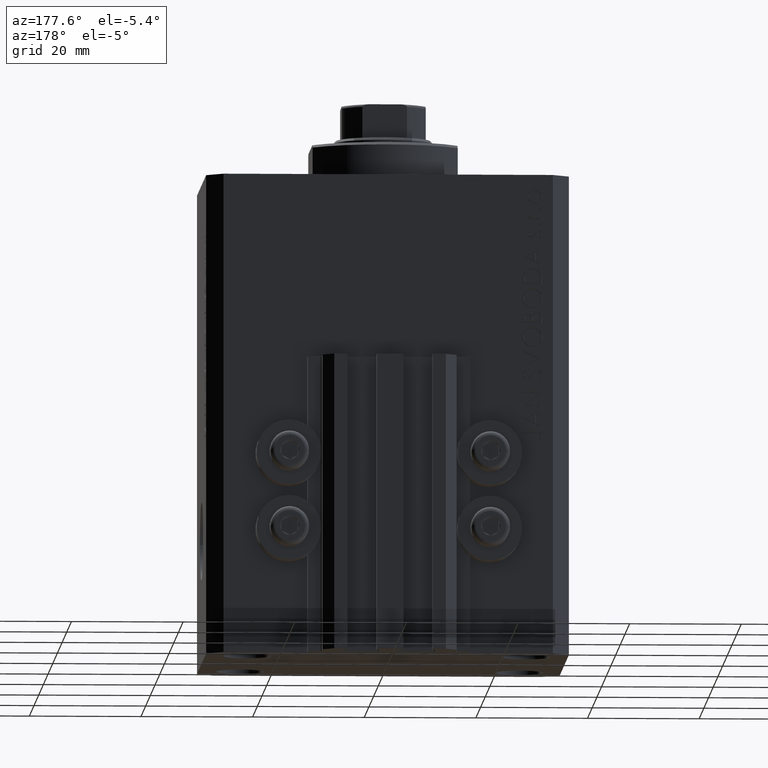
[diagram: clean part render]
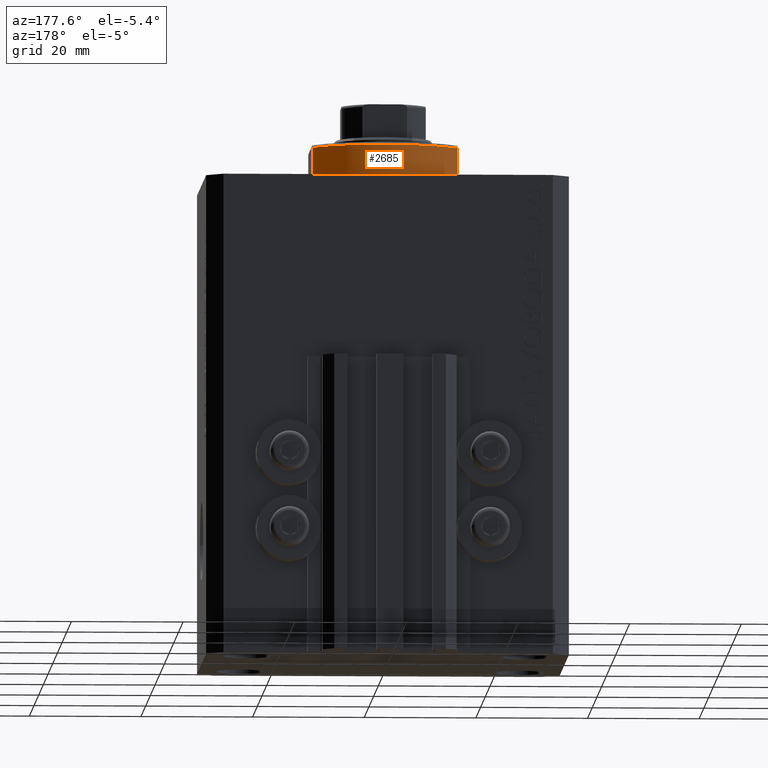
[diagram: same view with one face highlighted and labeled with its STEP entity id]
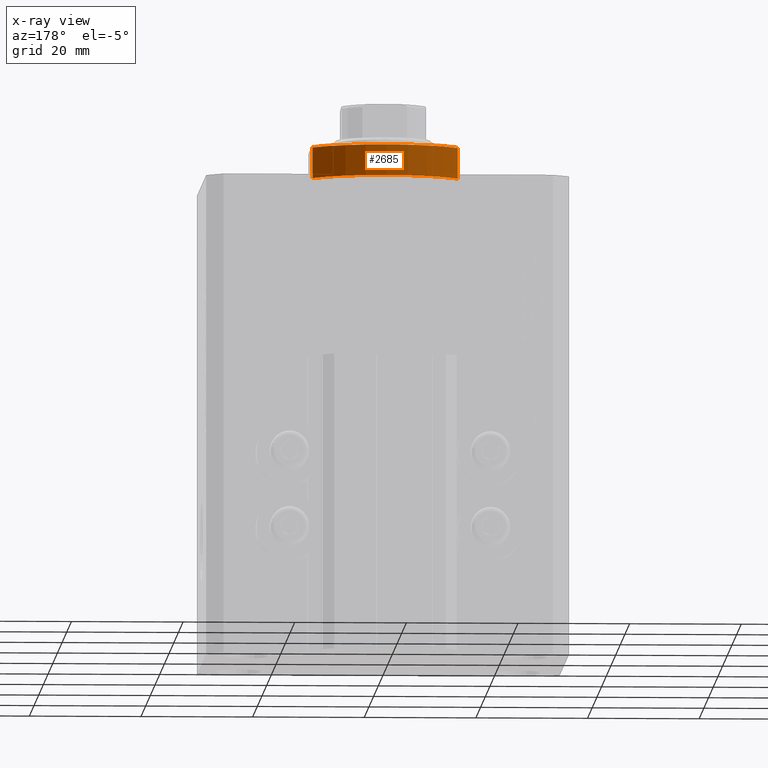
[diagram: x-ray of the same camera — body ghosted, the highlighted face saturated]
A machine part, auxiliary view. The second image highlights one B-rep face of the part: STEP entity #2685.
The next image is the same camera in x-ray: the body ghosted, the highlighted face saturated — about 0% of this face is hidden behind the body in this view.
In plain terms, the highlighted cylindrical surface (partial cylindrical patch) has radius 16 mm, axis along (0, 0, -1).
Its self-contained STEP definition (entity closure, byte-faithful):
#443 = DIRECTION ( 'NONE',  ( 1.000000000000000000, -8.881784197001252323E-16, 0.000000000000000000 ) ) ;
#967 = DIRECTION ( 'NONE',  ( 0.000000000000000000, 0.000000000000000000, 1.000000000000000000 ) ) ;
#1923 = ORIENTED_EDGE ( 'NONE', *, *, #36969, .T. ) ;
#2670 = FACE_OUTER_BOUND ( 'NONE', #39855, .T. ) ;
#2685 = ADVANCED_FACE ( 'NONE', ( #2670 ), #23704, .T. ) ;
#3661 = VERTEX_POINT ( 'NONE', #45901 ) ;
#4009 = VERTEX_POINT ( 'NONE', #37189 ) ;
#4083 = DIRECTION ( 'NONE',  ( -1.000000000000000000, 0.000000000000000000, 0.000000000000000000 ) ) ;
#6306 = EDGE_CURVE ( 'NONE', #29235, #3661, #13608, .T. ) ;
#6655 = VECTOR ( 'NONE', #16753, 1000.000000000000000 ) ;
#6907 = DIRECTION ( 'NONE',  ( -0.000000000000000000, -0.000000000000000000, -1.000000000000000000 ) ) ;
#10201 = EDGE_CURVE ( 'NONE', #4009, #31431, #22178, .T. ) ;
#11184 = DIRECTION ( 'NONE',  ( -0.000000000000000000, -0.000000000000000000, 1.000000000000000000 ) ) ;
#13608 = LINE ( 'NONE', #38466, #6655 ) ;
#14530 = EDGE_CURVE ( 'NONE', #3661, #31431, #45023, .T. ) ;
#15136 = ORIENTED_EDGE ( 'NONE', *, *, #6306, .T. ) ;
#15726 = AXIS2_PLACEMENT_3D ( 'NONE', #19107, #967, #4083 ) ;
#16753 = DIRECTION ( 'NONE',  ( -0.000000000000000000, -0.000000000000000000, 1.000000000000000000 ) ) ;
#17225 = DIRECTION ( 'NONE',  ( 1.000000000000000000, 0.000000000000000000, 0.000000000000000000 ) ) ;
#18055 = ORIENTED_EDGE ( 'NONE', *, *, #10201, .F. ) ;
#19107 = CARTESIAN_POINT ( 'NONE',  ( 0.000000000000000000, 0.000000000000000000, -6.000000000000023981 ) ) ;
#19706 = VECTOR ( 'NONE', #11184, 1000.000000000000000 ) ;
#22102 = ORIENTED_EDGE ( 'NONE', *, *, #14530, .T. ) ;
#22178 = LINE ( 'NONE', #32682, #19706 ) ;
#23704 = CYLINDRICAL_SURFACE ( 'NONE', #42271, 16.00000000000000000 ) ;
#28466 = CARTESIAN_POINT ( 'NONE',  ( 13.00000000000000000, 9.327379053088815652, -0.4999999999999995559 ) ) ;
#29235 = VERTEX_POINT ( 'NONE', #45340 ) ;
#31106 = CARTESIAN_POINT ( 'NONE',  ( 0.000000000000000000, 0.000000000000000000, -6.500000000000000000 ) ) ;
#31431 = VERTEX_POINT ( 'NONE', #28466 ) ;
#31732 = CIRCLE ( 'NONE', #15726, 16.00000000000000000 ) ;
#32682 = CARTESIAN_POINT ( 'NONE',  ( 13.00000000000000000, 9.327379053088813876, -6.500000000000000000 ) ) ;
#34911 = DIRECTION ( 'NONE',  ( -0.000000000000000000, -0.000000000000000000, 1.000000000000000000 ) ) ;
#36969 = EDGE_CURVE ( 'NONE', #4009, #29235, #31732, .T. ) ;
#37189 = CARTESIAN_POINT ( 'NONE',  ( 13.00000000000000000, 9.327379053088916905, -6.000000000000014211 ) ) ;
#38466 = CARTESIAN_POINT ( 'NONE',  ( -13.00000000000000000, 9.327379053088813876, -6.500000000000000000 ) ) ;
#39604 = CARTESIAN_POINT ( 'NONE',  ( 0.000000000000000000, 0.000000000000000000, -0.4999999999999995559 ) ) ;
#39855 = EDGE_LOOP ( 'NONE', ( #18055, #1923, #15136, #22102 ) ) ;
#41974 = AXIS2_PLACEMENT_3D ( 'NONE', #39604, #6907, #443 ) ;
#42271 = AXIS2_PLACEMENT_3D ( 'NONE', #31106, #34911, #17225 ) ;
#45023 = CIRCLE ( 'NONE', #41974, 16.00000000000000000 ) ;
#45340 = CARTESIAN_POINT ( 'NONE',  ( -13.00000000000000000, 9.327379053088916905, -6.000000000000014211 ) ) ;
#45901 = CARTESIAN_POINT ( 'NONE',  ( -13.00000000000000000, 9.327379053088815652, -0.4999999999999995559 ) ) ;